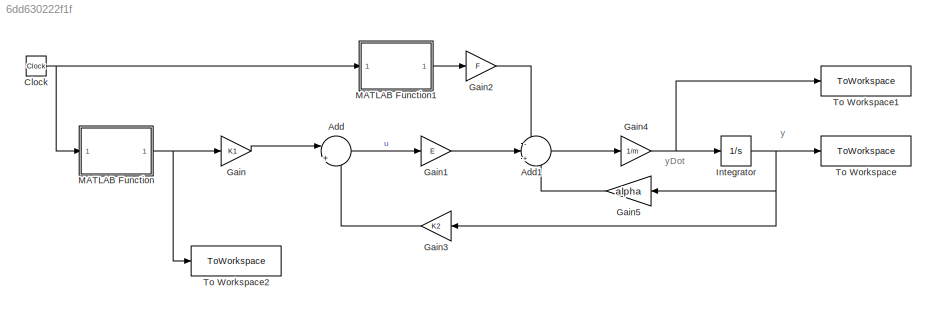
MODEL slx_6dd630222f1f
KIND model
CONFIG AbsTol = auto
CONFIG EnableMultiTasking = off
CONFIG FixedStep = auto
CONFIG MaxStep = auto
CONFIG MinStep = auto
CONFIG RelTol = 1e-3
CONFIG SampleTimeConstraint = Unconstrained
CONFIG SolverName = VariableStepAuto
CONFIG StartTime = 0.0
CONFIG StopTime = time_end
BLOCK [Sum] Add
  Inputs = ||+|-
  Ports = [2, 1]
BLOCK [Sum] Add1
  Inputs = -|+|-
  Ports = [3, 1]
BLOCK [Clock] Clock
BLOCK [Gain] Gain
  Gain = K1
BLOCK [Gain] Gain1
  Gain = E
BLOCK [Gain] Gain2
  Gain = F
BLOCK [Gain] Gain3
  Gain = K2
  NameLocation = top
BLOCK [Gain] Gain4
  Gain = 1/m
BLOCK [Gain] Gain5
  Gain = alpha
  NameLocation = top
BLOCK [Integrator] Integrator
  InitialCondition = 20
  Ports = [1, 1]
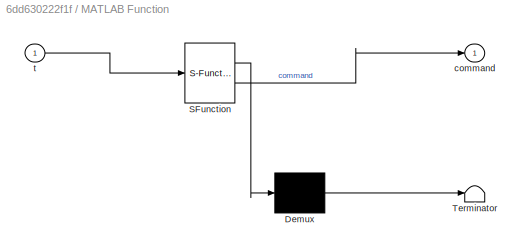
BLOCK [SubSystem] MATLAB Function
  ErrorFcn = Stateflow.Translate.translate
  PermitHierarchicalResolution = ExplicitOnly
  Ports = [1, 1]
  RequestExecContextInheritance = off
  SFBlockType = MATLAB Function
  TreatAsAtomicUnit = on
BLOCK [Demux] MATLAB Function/ Demux 
  Outputs = 1
  Ports = [1, 1]
BLOCK [S-Function] MATLAB Function/ SFunction 
  EnableBusSupport = on
  FunctionName = sf_sfun
  PortCounts = [1 2]
  Ports = [1, 2]
  SFcnIsStateOwnerBlock = off
  SFunctionDeploymentMode = off
  Tag = Stateflow S-Function 2
BLOCK [Terminator] MATLAB Function/ Terminator 
BLOCK [Outport] MATLAB Function/command
BLOCK [Inport] MATLAB Function/t
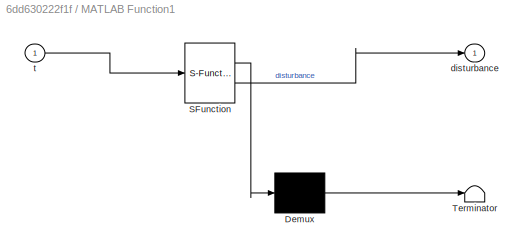
BLOCK [SubSystem] MATLAB Function1
  ErrorFcn = Stateflow.Translate.translate
  PermitHierarchicalResolution = ExplicitOnly
  Ports = [1, 1]
  RequestExecContextInheritance = off
  SFBlockType = MATLAB Function
  TreatAsAtomicUnit = on
BLOCK [Demux] MATLAB Function1/ Demux 
  Outputs = 1
  Ports = [1, 1]
BLOCK [S-Function] MATLAB Function1/ SFunction 
  EnableBusSupport = on
  FunctionName = sf_sfun
  PortCounts = [1 2]
  Ports = [1, 2]
  SFcnIsStateOwnerBlock = off
  SFunctionDeploymentMode = off
  Tag = Stateflow S-Function 1
BLOCK [Terminator] MATLAB Function1/ Terminator 
BLOCK [Outport] MATLAB Function1/disturbance
BLOCK [Inport] MATLAB Function1/t
BLOCK [ToWorkspace] To Workspace
  FixptAsFi = on
  MaxDataPoints = inf
  Ports = [1]
  SampleTime = -1
  SaveFormat = Timeseries
  VariableName = y
BLOCK [ToWorkspace] To Workspace1
  FixptAsFi = on
  MaxDataPoints = inf
  Ports = [1]
  SampleTime = -1
  SaveFormat = Timeseries
  VariableName = yDot
BLOCK [ToWorkspace] To Workspace2
  FixptAsFi = on
  MaxDataPoints = inf
  Ports = [1]
  SampleTime = -1
  SaveFormat = Timeseries
  VariableName = command
ANNOTATION (root): y
ANNOTATION (root): yDot
LINE Add1:1 -> Gain4:1
LINE Add:1 -> Gain1:1
NET Clock:1 -> MATLAB Function1:1, MATLAB Function:1
LINE Gain1:1 -> Add1:2
LINE Gain2:1 -> Add1:1
LINE Gain3:1 -> Add:2
NET Gain4:1 -> Integrator:1, To Workspace1:1
LINE Gain5:1 -> Add1:3
LINE Gain:1 -> Add:1
NET Integrator:1 -> Gain3:1, Gain5:1, To Workspace:1
LINE MATLAB Function1:1 -> Gain2:1
NET MATLAB Function:1 -> Gain:1, To Workspace2:1
note: NET lines group one-source signal fan-out (src -> all destinations, sorted); 1:1 wires keep LINE
CHART MATLAB Function states=1 transitions=1
  STATE_LABEL 'eML_blk_kernel()'
  STATE_LABEL 'SCRIPT:\nfunction command = r(t)\nif (0 <= t) && (t < 5)\n    out = 50;\nelseif (5 <= t) && (t < 15)\n    out = 55;\nelseif (15 <= t) && (t < 25)\n    out = 60;\nelseif (25 <= t) && (t < 45)\n    out = 60 - 4/3 * (t - 25);\nelse\n    out = 45;\nend\n\nout = out * 1609.34 / 3600;     % Convert miles/hr to meters/sec\ncommand = out;\n'
CHART MATLAB Function1 states=1 transitions=1
  STATE_LABEL 'eML_blk_kernel()'
  STATE_LABEL 'SCRIPT:\nfunction disturbance = d(t)\nif (0 <= t) && (t < 35)\n    out = 0;\nelseif (35 <= t) && (t < 45)\n    out = 1.3;\nelseif (45 <= t) && (t < 55)\n    out = 0;\nelseif (55 <= t) && (t < 70)\n    out = 5.0;\nelse\n    out = 0;\nend\ndisturbance = out;\n'
CHART  states=0 transitions=0
CHART  states=0 transitions=0
